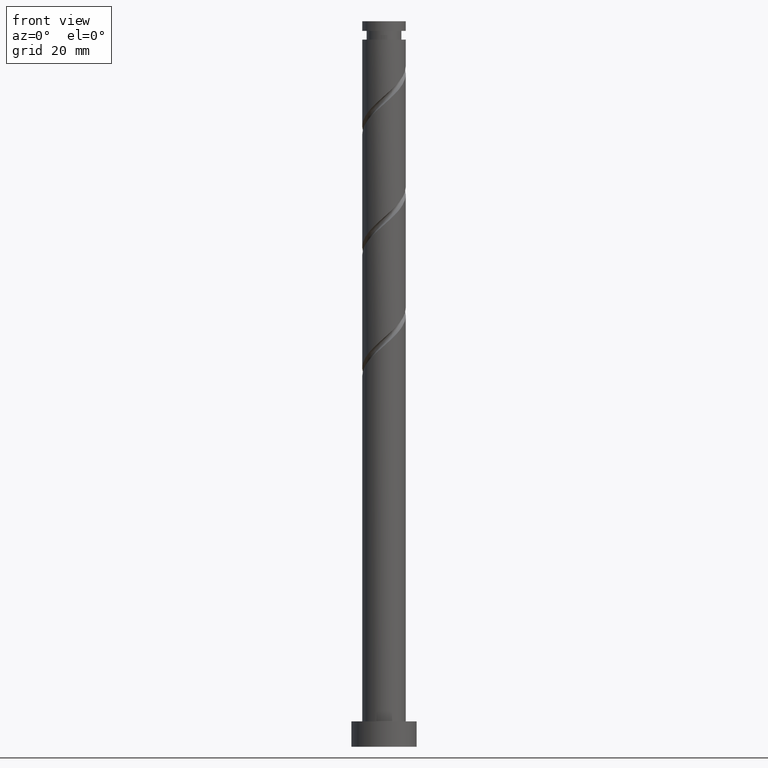
[diagram: clean part render]
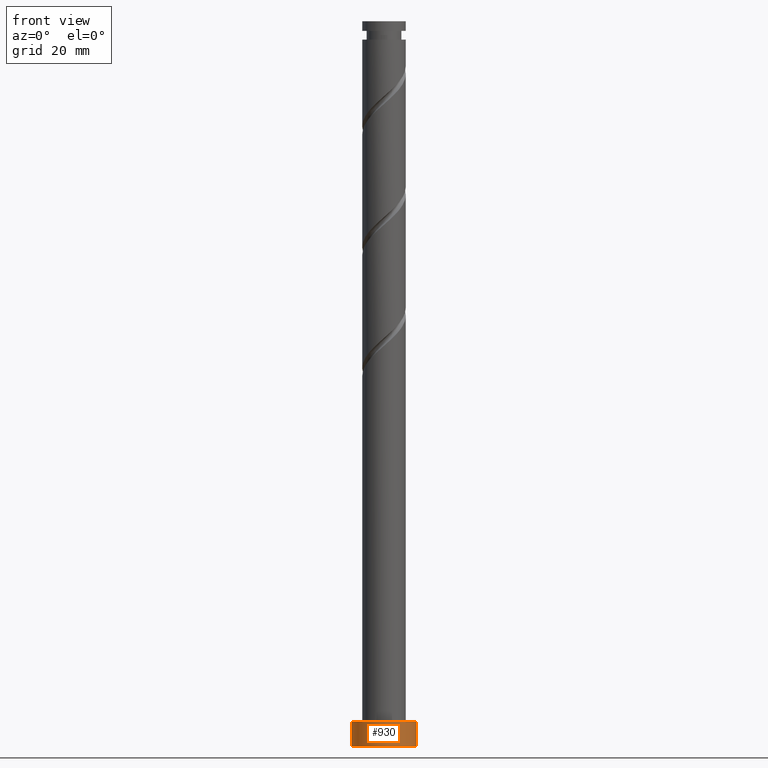
[diagram: same view with one face highlighted and labeled with its STEP entity id]
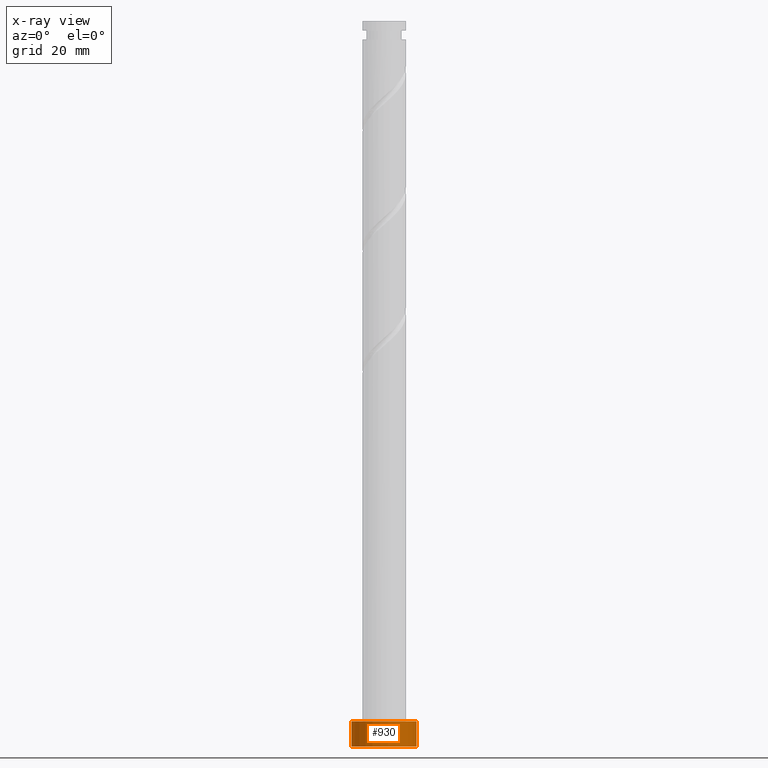
[diagram: x-ray of the same camera — body ghosted, the highlighted face saturated]
A machine part, front view. The second image highlights one B-rep face of the part: STEP entity #930.
The next image is the same camera in x-ray: the body ghosted, the highlighted face saturated — about 0% of this face is hidden behind the body in this view.
In plain terms, the highlighted cylindrical surface (edge-blend (fillet) strip) has radius 9 mm, axis along (-0, -0, -1).
Its self-contained STEP definition (entity closure, byte-faithful):
#2 = CARTESIAN_POINT ( 'NONE',  ( 0.000000000000000000, 0.000000000000000000, 7.000000000000000000 ) ) ;
#41 = EDGE_CURVE ( 'NONE', #1512, #1211, #95, .T. ) ;
#95 = LINE ( 'NONE', #1461, #121 ) ;
#107 = DIRECTION ( 'NONE',  ( 1.000000000000000000, 0.000000000000000000, 0.000000000000000000 ) ) ;
#121 = VECTOR ( 'NONE', #1166, 1000.000000000000000 ) ;
#135 = CIRCLE ( 'NONE', #1147, 9.000000000000000000 ) ;
#178 = DIRECTION ( 'NONE',  ( -1.000000000000000000, 0.000000000000000000, 0.000000000000000000 ) ) ;
#276 = EDGE_LOOP ( 'NONE', ( #1556, #811, #1626, #1220 ) ) ;
#352 = AXIS2_PLACEMENT_3D ( 'NONE', #797, #1342, #178 ) ;
#636 = VERTEX_POINT ( 'NONE', #668 ) ;
#668 = CARTESIAN_POINT ( 'NONE',  ( -9.000000000000000000, 0.000000000000000000, 7.000000000000000000 ) ) ;
#697 = CARTESIAN_POINT ( 'NONE',  ( -9.000000000000000000, 0.000000000000000000, 0.000000000000000000 ) ) ;
#720 = DIRECTION ( 'NONE',  ( 1.000000000000000000, 0.000000000000000000, 0.000000000000000000 ) ) ;
#740 = CARTESIAN_POINT ( 'NONE',  ( 0.000000000000000000, 0.000000000000000000, 0.000000000000000000 ) ) ;
#786 = FACE_OUTER_BOUND ( 'NONE', #276, .T. ) ;
#797 = CARTESIAN_POINT ( 'NONE',  ( 0.000000000000000000, 0.000000000000000000, 7.000000000000000000 ) ) ;
#811 = ORIENTED_EDGE ( 'NONE', *, *, #1597, .F. ) ;
#835 = CARTESIAN_POINT ( 'NONE',  ( 9.000000000000000000, 1.102182119232617714E-15, 0.000000000000000000 ) ) ;
#930 = ADVANCED_FACE ( 'NONE', ( #786 ), #1733, .T. ) ;
#951 = DIRECTION ( 'NONE',  ( 0.000000000000000000, 0.000000000000000000, 1.000000000000000000 ) ) ;
#983 = VERTEX_POINT ( 'NONE', #697 ) ;
#1102 = EDGE_CURVE ( 'NONE', #636, #983, #1103, .T. ) ;
#1103 = LINE ( 'NONE', #1129, #1123 ) ;
#1123 = VECTOR ( 'NONE', #1639, 1000.000000000000000 ) ;
#1129 = CARTESIAN_POINT ( 'NONE',  ( -9.000000000000000000, 0.000000000000000000, 7.000000000000000000 ) ) ;
#1147 = AXIS2_PLACEMENT_3D ( 'NONE', #740, #1680, #720 ) ;
#1166 = DIRECTION ( 'NONE',  ( -0.000000000000000000, -0.000000000000000000, -1.000000000000000000 ) ) ;
#1198 = CARTESIAN_POINT ( 'NONE',  ( 9.000000000000000000, 1.102182119232617714E-15, 7.000000000000000000 ) ) ;
#1211 = VERTEX_POINT ( 'NONE', #835 ) ;
#1220 = ORIENTED_EDGE ( 'NONE', *, *, #1257, .T. ) ;
#1257 = EDGE_CURVE ( 'NONE', #983, #1211, #135, .T. ) ;
#1290 = AXIS2_PLACEMENT_3D ( 'NONE', #2, #951, #107 ) ;
#1342 = DIRECTION ( 'NONE',  ( -0.000000000000000000, -0.000000000000000000, -1.000000000000000000 ) ) ;
#1461 = CARTESIAN_POINT ( 'NONE',  ( 9.000000000000000000, 1.102182119232617714E-15, 7.000000000000000000 ) ) ;
#1512 = VERTEX_POINT ( 'NONE', #1198 ) ;
#1556 = ORIENTED_EDGE ( 'NONE', *, *, #41, .F. ) ;
#1597 = EDGE_CURVE ( 'NONE', #636, #1512, #1651, .T. ) ;
#1626 = ORIENTED_EDGE ( 'NONE', *, *, #1102, .T. ) ;
#1639 = DIRECTION ( 'NONE',  ( -0.000000000000000000, -0.000000000000000000, -1.000000000000000000 ) ) ;
#1651 = CIRCLE ( 'NONE', #1290, 9.000000000000000000 ) ;
#1680 = DIRECTION ( 'NONE',  ( 0.000000000000000000, 0.000000000000000000, 1.000000000000000000 ) ) ;
#1733 = CYLINDRICAL_SURFACE ( 'NONE', #352, 9.000000000000000000 ) ;